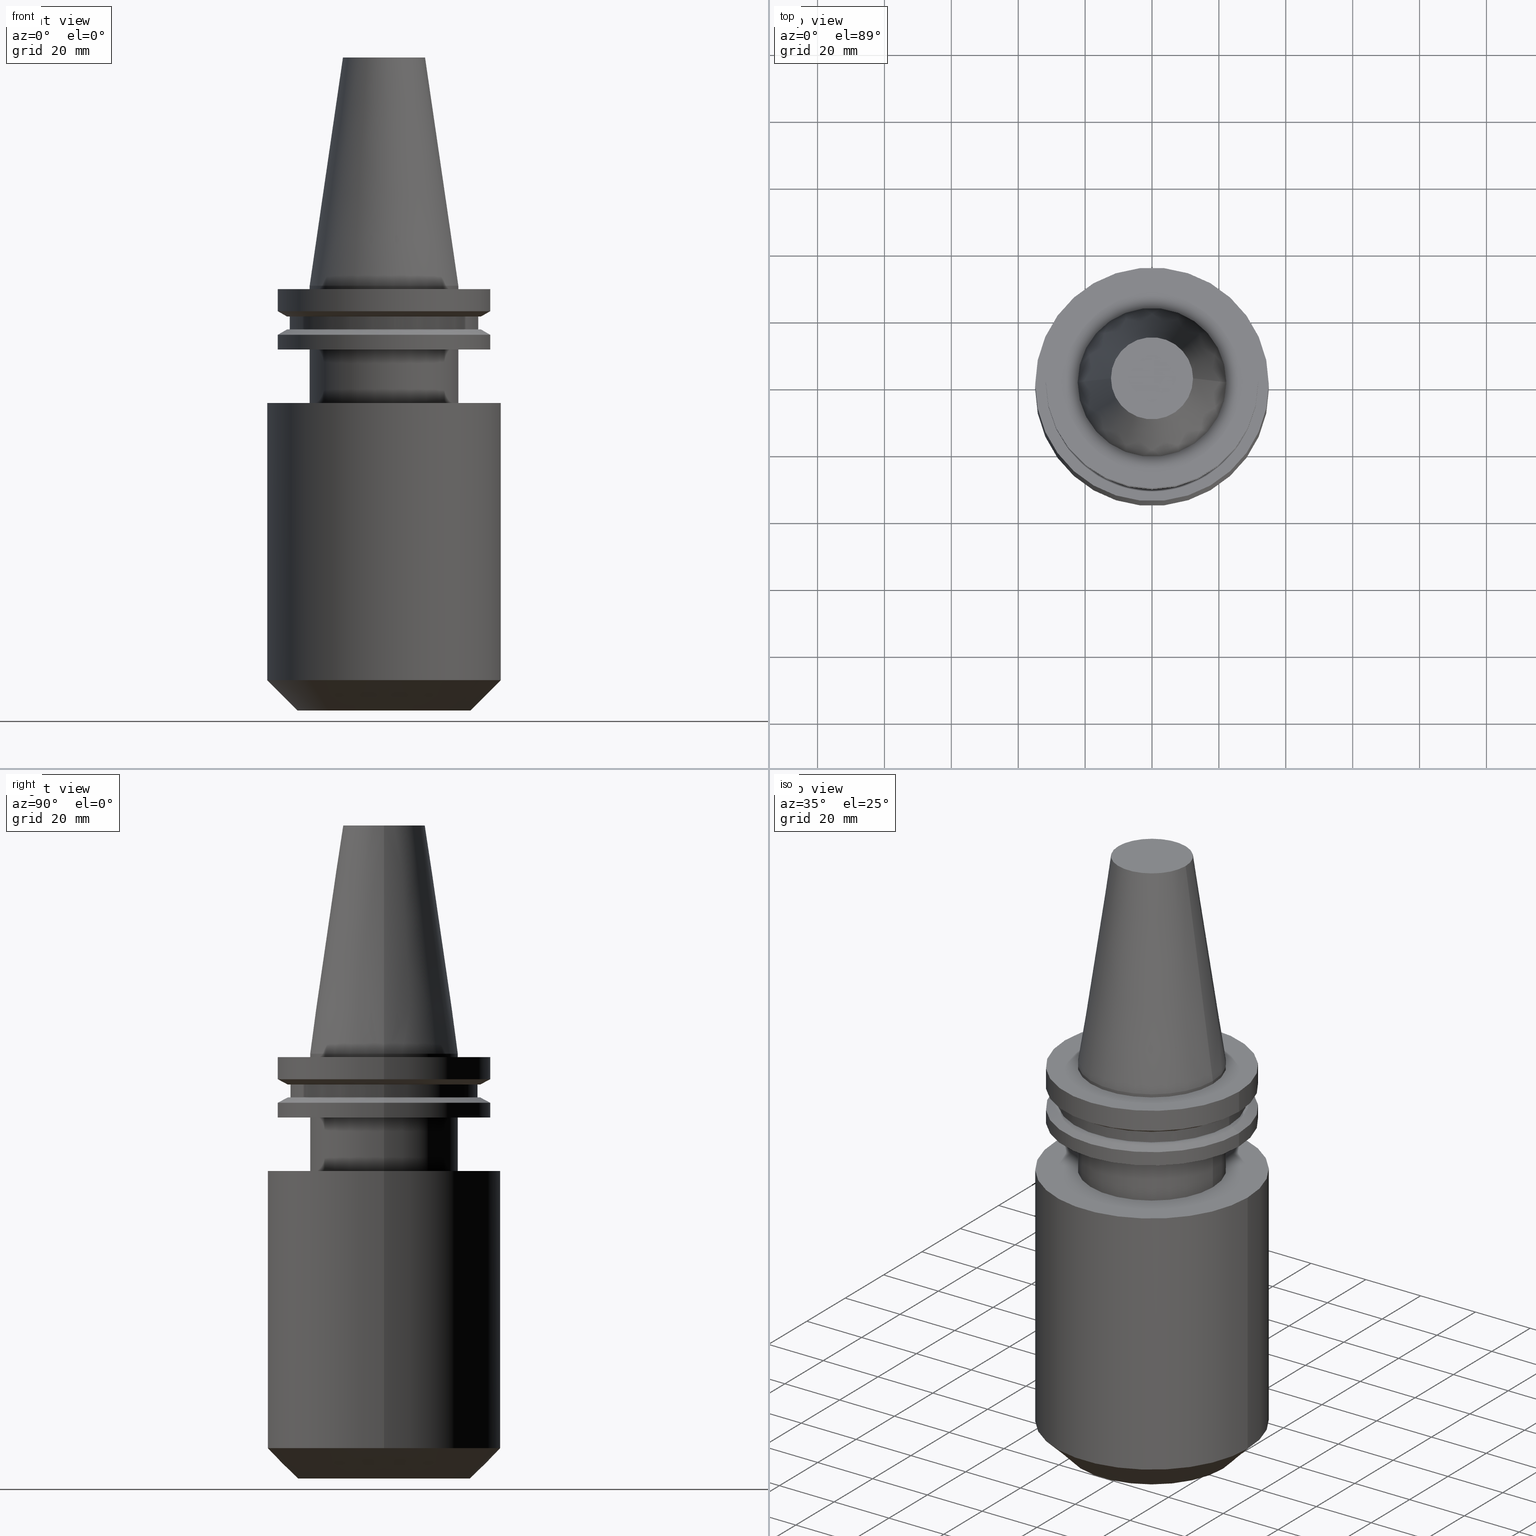
[diagram: canonical four-view strip — front | top / right | iso, engineering-drawing reading convention]
A machine part, canonical four-view strip (front | top / right | iso — engineering-drawing reading convention). The complete STEP part file that produces these views, byte-faithful:
ISO-10303-21;
HEADER;
FILE_DESCRIPTION (( 'STEP AP203' ),
    '1' );
FILE_NAME ('BCV40-EM1_500-5.stp',
    '2022-02-23T14:51:17',
    ( '' ),
    ( '' ),
    'SwSTEP 2.0',
    'SolidWorks 2021',
    '' );
FILE_SCHEMA (( 'CONFIG_CONTROL_DESIGN' ));
ENDSEC;

DATA;
#1 = EDGE_LOOP ( 'NONE', ( #387, #137, #100, #568 ) ) ;
#2 = CYLINDRICAL_SURFACE ( 'NONE', #79, 22.22500000000000142 ) ;
#3 = VERTEX_POINT ( 'NONE', #643 ) ;
#4 = AXIS2_PLACEMENT_3D ( 'NONE', #124, #389, #844 ) ;
#5 = DIRECTION ( 'NONE',  ( 1.000000000000000000, 0.000000000000000000, 0.000000000000000000 ) ) ;
#6 = CIRCLE ( 'NONE', #374, 31.75000000000000000 ) ;
#7 = DIRECTION ( 'NONE',  ( 1.000000000000000000, 0.000000000000000000, 0.000000000000000000 ) ) ;
#8 = ORIENTED_EDGE ( 'NONE', *, *, #758, .F. ) ;
#9 = CARTESIAN_POINT ( 'NONE',  ( 0.000000000000000000, 0.000000000000000000, -35.04999999999999716 ) ) ;
#10 = CARTESIAN_POINT ( 'NONE',  ( -22.22500000000000142, 2.721777511104992849E-15, -19.04999999999999716 ) ) ;
#11 = VERTEX_POINT ( 'NONE', #57 ) ;
#12 = FACE_BOUND ( 'NONE', #132, .T. ) ;
#13 = DIRECTION ( 'NONE',  ( -0.000000000000000000, -0.000000000000000000, 1.000000000000000000 ) ) ;
#14 = ORIENTED_EDGE ( 'NONE', *, *, #824, .F. ) ;
#15 = ORIENTED_EDGE ( 'NONE', *, *, #561, .F. ) ;
#16 = DIRECTION ( 'NONE',  ( 1.000000000000000000, 0.000000000000000000, 0.000000000000000000 ) ) ;
#17 = AXIS2_PLACEMENT_3D ( 'NONE', #604, #757, #289 ) ;
#18 = AXIS2_PLACEMENT_3D ( 'NONE', #815, #232, #483 ) ;
#19 = DIRECTION ( 'NONE',  ( -0.000000000000000000, -0.000000000000000000, 1.000000000000000000 ) ) ;
#20 = ORIENTED_EDGE ( 'NONE', *, *, #805, .F. ) ;
#21 = VERTEX_POINT ( 'NONE', #242 ) ;
#22 = CARTESIAN_POINT ( 'NONE',  ( 0.000000000000000000, 0.000000000000000000, 68.25000000000000000 ) ) ;
#23 = FACE_OUTER_BOUND ( 'NONE', #355, .T. ) ;
#24 = EDGE_CURVE ( 'NONE', #264, #3, #122, .T. ) ;
#25 = DIRECTION ( 'NONE',  ( -0.000000000000000000, -0.000000000000000000, 1.000000000000000000 ) ) ;
#26 = ORIENTED_EDGE ( 'NONE', *, *, #852, .F. ) ;
#27 = EDGE_LOOP ( 'NONE', ( #478, #134, #720, #278 ) ) ;
#28 = CARTESIAN_POINT ( 'NONE',  ( -31.75000000000000000, 3.888253587292846476E-15, -14.65472339340266572 ) ) ;
#29 = CARTESIAN_POINT ( 'NONE',  ( 0.000000000000000000, 0.000000000000000000, 0.000000000000000000 ) ) ;
#30 = CARTESIAN_POINT ( 'NONE',  ( 19.05000000000000071, 0.000000000000000000, 0.000000000000000000 ) ) ;
#31 = ADVANCED_FACE ( 'NONE', ( #574 ), #490, .F. ) ;
#32 = ORIENTED_EDGE ( 'NONE', *, *, #457, .T. ) ;
#33 = ORIENTED_EDGE ( 'NONE', *, *, #418, .T. ) ;
#34 = FACE_OUTER_BOUND ( 'NONE', #150, .T. ) ;
#35 = CARTESIAN_POINT ( 'NONE',  ( 34.92499999999999716, 0.000000000000000000, 0.000000000000000000 ) ) ;
#36 = AXIS2_PLACEMENT_3D ( 'NONE', #522, #549, #560 ) ;
#37 = AXIS2_PLACEMENT_3D ( 'NONE', #244, #498, #501 ) ;
#38 = APPLICATION_CONTEXT ( 'configuration controlled 3d designs of mechanical parts and assemblies' ) ;
#39 = CARTESIAN_POINT ( 'NONE',  ( 0.000000000000000000, 22.22499999999999787, -35.04999999999999716 ) ) ;
#40 = VERTEX_POINT ( 'NONE', #760 ) ;
#41 = DIRECTION ( 'NONE',  ( -0.000000000000000000, -0.000000000000000000, 1.000000000000000000 ) ) ;
#42 = DIRECTION ( 'NONE',  ( -0.000000000000000000, -0.000000000000000000, 1.000000000000000000 ) ) ;
#43 = CARTESIAN_POINT ( 'NONE',  ( -31.75000000000000000, 0.000000000000000000, -14.65472339340266572 ) ) ;
#44 = EDGE_LOOP ( 'NONE', ( #471, #427, #204, #766 ) ) ;
#45 = CYLINDRICAL_SURFACE ( 'NONE', #335, 31.75000000000000000 ) ;
#46 = CARTESIAN_POINT ( 'NONE',  ( 0.000000000000000000, 0.000000000000000000, -127.0000000000000000 ) ) ;
#47 = CALENDAR_DATE ( 2022, 23, 2 ) ;
#48 = EDGE_CURVE ( 'NONE', #200, #129, #564, .T. ) ;
#49 = CIRCLE ( 'NONE', #476, 28.17999999999999972 ) ;
#50 = VERTEX_POINT ( 'NONE', #563 ) ;
#51 = APPROVAL_DATE_TIME ( #445, #810 ) ;
#52 = CARTESIAN_POINT ( 'NONE',  ( 0.000000000000000000, 0.000000000000000000, -127.0000000000000000 ) ) ;
#53 = APPROVAL ( #502, 'UNSPECIFIED' ) ;
#54 = DIRECTION ( 'NONE',  ( -0.000000000000000000, -0.000000000000000000, 1.000000000000000000 ) ) ;
#55 =( NAMED_UNIT ( * ) PLANE_ANGLE_UNIT ( ) SI_UNIT ( $, .RADIAN. ) );
#56 = FACE_OUTER_BOUND ( 'NONE', #276, .T. ) ;
#57 = CARTESIAN_POINT ( 'NONE',  ( -34.92499999999999716, 4.277078946022130887E-15, -35.04999999999999716 ) ) ;
#58 = EDGE_CURVE ( 'NONE', #801, #558, #557, .T. ) ;
#59 = APPROVAL_DATE_TIME ( #845, #499 ) ;
#60 = DIRECTION ( 'NONE',  ( -0.000000000000000000, -0.000000000000000000, 1.000000000000000000 ) ) ;
#61 = LOCAL_TIME ( 8, 51, 17.00000000000000000, #333 ) ;
#62 = AXIS2_PLACEMENT_3D ( 'NONE', #413, #166, #426 ) ;
#63 = CARTESIAN_POINT ( 'NONE',  ( 0.000000000000000000, 0.000000000000000000, -19.04999999999999716 ) ) ;
#64 = EDGE_LOOP ( 'NONE', ( #728, #153, #168, #216 ) ) ;
#65 = CC_DESIGN_PERSON_AND_ORGANIZATION_ASSIGNMENT ( #770, #850, ( #719 ) ) ;
#66 = DIRECTION ( 'NONE',  ( -0.000000000000000000, -0.000000000000000000, 1.000000000000000000 ) ) ;
#67 = ORIENTED_EDGE ( 'NONE', *, *, #842, .T. ) ;
#68 = DIRECTION ( 'NONE',  ( 1.000000000000000000, 0.000000000000000000, 0.000000000000000000 ) ) ;
#69 = EDGE_CURVE ( 'NONE', #40, #624, #647, .T. ) ;
#70 = VERTEX_POINT ( 'NONE', #10 ) ;
#71 = CARTESIAN_POINT ( 'NONE',  ( 22.22500000000000142, 0.000000000000000000, 68.25000000000000000 ) ) ;
#72 = DIRECTION ( 'NONE',  ( 1.000000000000000000, 0.000000000000000000, 0.000000000000000000 ) ) ;
#73 = CC_DESIGN_APPROVAL ( #499, ( #719 ) ) ;
#74 = VECTOR ( 'NONE', #273, 1000.000000000000000 ) ;
#75 = AXIS2_PLACEMENT_3D ( 'NONE', #209, #463, #738 ) ;
#76 = ORIENTED_EDGE ( 'NONE', *, *, #245, .T. ) ;
#77 = VECTOR ( 'NONE', #290, 1000.000000000000000 ) ;
#78 = DIRECTION ( 'NONE',  ( 1.000000000000000000, 0.000000000000000000, 0.000000000000000000 ) ) ;
#79 = AXIS2_PLACEMENT_3D ( 'NONE', #201, #655, #5 ) ;
#80 = ORIENTED_EDGE ( 'NONE', *, *, #392, .F. ) ;
#81 = CARTESIAN_POINT ( 'NONE',  ( 22.22500000000000142, 0.000000000000000000, 68.25000000000000000 ) ) ;
#82 = VERTEX_POINT ( 'NONE', #519 ) ;
#83 = EDGE_CURVE ( 'NONE', #258, #264, #799, .T. ) ;
#84 = CARTESIAN_POINT ( 'NONE',  ( 0.000000000000000000, 0.000000000000000000, 0.000000000000000000 ) ) ;
#85 = CARTESIAN_POINT ( 'NONE',  ( 19.05000000000000071, 0.000000000000000000, -35.04999999999999716 ) ) ;
#86 = CARTESIAN_POINT ( 'NONE',  ( 0.000000000000000000, 0.000000000000000000, -9.204999999999991189 ) ) ;
#87 = ORIENTED_EDGE ( 'NONE', *, *, #359, .T. ) ;
#88 = AXIS2_PLACEMENT_3D ( 'NONE', #625, #835, #175 ) ;
#89 = ORIENTED_EDGE ( 'NONE', *, *, #69, .F. ) ;
#90 = CARTESIAN_POINT ( 'NONE',  ( 31.75000000000000000, 0.000000000000000000, -14.65472339340266572 ) ) ;
#91 = AXIS2_PLACEMENT_3D ( 'NONE', #29, #541, #93 ) ;
#92 = EDGE_CURVE ( 'NONE', #258, #589, #125, .T. ) ;
#93 = DIRECTION ( 'NONE',  ( 1.000000000000000000, 0.000000000000000000, 0.000000000000000000 ) ) ;
#94 = AXIS2_PLACEMENT_3D ( 'NONE', #452, #250, #177 ) ;
#95 = DIRECTION ( 'NONE',  ( -0.000000000000000000, -0.000000000000000000, 1.000000000000000000 ) ) ;
#96 = ORIENTED_EDGE ( 'NONE', *, *, #359, .F. ) ;
#97 = CYLINDRICAL_SURFACE ( 'NONE', #293, 34.92499999999999716 ) ;
#98 = ADVANCED_FACE ( 'NONE', ( #401 ), #660, .T. ) ;
#99 = CARTESIAN_POINT ( 'NONE',  ( 28.17999999999999972, 0.000000000000000000, -13.05499999999999794 ) ) ;
#100 = ORIENTED_EDGE ( 'NONE', *, *, #331, .T. ) ;
#101 = FACE_OUTER_BOUND ( 'NONE', #529, .T. ) ;
#102 = DIRECTION ( 'NONE',  ( 1.000000000000000000, 0.000000000000000000, 0.000000000000000000 ) ) ;
#103 = EDGE_CURVE ( 'NONE', #399, #828, #339, .T. ) ;
#104 = DIRECTION ( 'NONE',  ( -0.000000000000000000, -0.000000000000000000, 1.000000000000000000 ) ) ;
#105 = ORIENTED_EDGE ( 'NONE', *, *, #576, .F. ) ;
#106 = CARTESIAN_POINT ( 'NONE',  ( 0.000000000000000000, 0.000000000000000000, 68.25000000000000000 ) ) ;
#107 = DIRECTION ( 'NONE',  ( 1.000000000000000000, 0.000000000000000000, 0.000000000000000000 ) ) ;
#108 = LINE ( 'NONE', #550, #77 ) ;
#109 = VERTEX_POINT ( 'NONE', #85 ) ;
#110 = CARTESIAN_POINT ( 'NONE',  ( 0.000000000000000000, 0.000000000000000000, -117.9000000000000057 ) ) ;
#111 = DIRECTION ( 'NONE',  ( 1.000000000000000000, 0.000000000000000000, 0.000000000000000000 ) ) ;
#112 = ORIENTED_EDGE ( 'NONE', *, *, #58, .T. ) ;
#113 = CARTESIAN_POINT ( 'NONE',  ( -22.22500000000000142, 0.000000000000000000, 0.000000000000000000 ) ) ;
#114 = EDGE_CURVE ( 'NONE', #624, #533, #269, .T. ) ;
#115 = PERSON_AND_ORGANIZATION ( #310, #675 ) ;
#116 = PLANE ( 'NONE',  #37 ) ;
#117 = ADVANCED_FACE ( 'NONE', ( #723 ), #136, .T. ) ;
#118 = AXIS2_PLACEMENT_3D ( 'NONE', #535, #351, #213 ) ;
#119 = AXIS2_PLACEMENT_3D ( 'NONE', #692, #41, #169 ) ;
#120 = AXIS2_PLACEMENT_3D ( 'NONE', #280, #25, #489 ) ;
#121 = CIRCLE ( 'NONE', #362, 19.05000000000000071 ) ;
#122 = LINE ( 'NONE', #375, #217 ) ;
#123 = PERSON_AND_ORGANIZATION_ROLE ( 'creator' ) ;
#124 = CARTESIAN_POINT ( 'NONE',  ( 0.000000000000000000, 0.000000000000000000, -14.65472339340266572 ) ) ;
#125 = LINE ( 'NONE', #404, #274 ) ;
#126 = EDGE_CURVE ( 'NONE', #194, #539, #412, .T. ) ;
#127 = FACE_OUTER_BOUND ( 'NONE', #390, .T. ) ;
#128 = EDGE_CURVE ( 'NONE', #741, #399, #454, .T. ) ;
#129 = VERTEX_POINT ( 'NONE', #419 ) ;
#130 = FACE_OUTER_BOUND ( 'NONE', #407, .T. ) ;
#131 = AXIS2_PLACEMENT_3D ( 'NONE', #536, #811, #784 ) ;
#132 = EDGE_LOOP ( 'NONE', ( #517, #618 ) ) ;
#133 = LINE ( 'NONE', #179, #663 ) ;
#134 = ORIENTED_EDGE ( 'NONE', *, *, #570, .T. ) ;
#135 = CARTESIAN_POINT ( 'NONE',  ( -28.97919780457007732, 3.718590885307660666E-15, -9.205000000000005400 ) ) ;
#136 = CYLINDRICAL_SURFACE ( 'NONE', #513, 28.17999999999999972 ) ;
#137 = ORIENTED_EDGE ( 'NONE', *, *, #126, .F. ) ;
#138 = CARTESIAN_POINT ( 'NONE',  ( 0.000000000000000000, 0.000000000000000000, -7.605276606597335842 ) ) ;
#139 = DIRECTION ( 'NONE',  ( -0.000000000000000000, -0.000000000000000000, 1.000000000000000000 ) ) ;
#140 = AXIS2_PLACEMENT_3D ( 'NONE', #152, #621, #410 ) ;
#141 = ORIENTED_EDGE ( 'NONE', *, *, #156, .F. ) ;
#142 = AXIS2_PLACEMENT_3D ( 'NONE', #503, #717, #778 ) ;
#143 = DIRECTION ( 'NONE',  ( -0.000000000000000000, -0.000000000000000000, 1.000000000000000000 ) ) ;
#144 = EDGE_CURVE ( 'NONE', #11, #813, #384, .T. ) ;
#145 = ORIENTED_EDGE ( 'NONE', *, *, #466, .F. ) ;
#146 = PLANE ( 'NONE',  #819 ) ;
#147 = ADVANCED_FACE ( 'NONE', ( #614 ), #687, .F. ) ;
#148 = DIRECTION ( 'NONE',  ( 1.000000000000000000, 0.000000000000000000, 0.000000000000000000 ) ) ;
#149 = ORIENTED_EDGE ( 'NONE', *, *, #431, .F. ) ;
#150 = EDGE_LOOP ( 'NONE', ( #772, #733, #737, #551 ) ) ;
#151 = CARTESIAN_POINT ( 'NONE',  ( 22.22500000000000142, 0.000000000000000000, -1.000000000000000888 ) ) ;
#152 = CARTESIAN_POINT ( 'NONE',  ( 0.000000000000000000, 0.000000000000000000, -7.605276606597335842 ) ) ;
#153 = ORIENTED_EDGE ( 'NONE', *, *, #408, .T. ) ;
#154 = AXIS2_PLACEMENT_3D ( 'NONE', #22, #742, #814 ) ;
#155 = CARTESIAN_POINT ( 'NONE',  ( 0.000000000000000000, 0.000000000000000000, -19.04999999999999716 ) ) ;
#156 = EDGE_CURVE ( 'NONE', #698, #558, #171, .T. ) ;
#157 = LINE ( 'NONE', #544, #364 ) ;
#158 = VERTEX_POINT ( 'NONE', #809 ) ;
#159 = ORIENTED_EDGE ( 'NONE', *, *, #233, .T. ) ;
#160 = DIRECTION ( 'NONE',  ( -0.000000000000000000, -0.000000000000000000, 1.000000000000000000 ) ) ;
#161 = CARTESIAN_POINT ( 'NONE',  ( 0.000000000000000000, 0.000000000000000000, -35.04999999999999716 ) ) ;
#162 = CARTESIAN_POINT ( 'NONE',  ( 0.000000000000000000, 0.000000000000000000, 68.25000000000000000 ) ) ;
#163 = EDGE_LOOP ( 'NONE', ( #323, #651 ) ) ;
#164 = CARTESIAN_POINT ( 'NONE',  ( -22.22500000000000142, 2.721777511104992849E-15, -1.000000000000000888 ) ) ;
#165 = FACE_OUTER_BOUND ( 'NONE', #44, .T. ) ;
#166 = DIRECTION ( 'NONE',  ( 0.000000000000000000, 0.000000000000000000, -1.000000000000000000 ) ) ;
#167 = DIRECTION ( 'NONE',  ( -0.000000000000000000, -0.000000000000000000, 1.000000000000000000 ) ) ;
#168 = ORIENTED_EDGE ( 'NONE', *, *, #732, .T. ) ;
#169 = DIRECTION ( 'NONE',  ( 1.000000000000000000, 0.000000000000000000, 0.000000000000000000 ) ) ;
#170 = DIRECTION ( 'NONE',  ( -0.1443082272672999711, 0.000000000000000000, -0.9895327864921755756 ) ) ;
#171 = CIRCLE ( 'NONE', #190, 22.22500000000000142 ) ;
#172 = VECTOR ( 'NONE', #296, 1000.000000000000000 ) ;
#173 = EDGE_CURVE ( 'NONE', #21, #158, #764, .T. ) ;
#174 = EDGE_LOOP ( 'NONE', ( #270, #606, #26, #612 ) ) ;
#175 = DIRECTION ( 'NONE',  ( 1.000000000000000000, 0.000000000000000000, 0.000000000000000000 ) ) ;
#176 = EDGE_CURVE ( 'NONE', #691, #82, #238, .T. ) ;
#177 = DIRECTION ( 'NONE',  ( 1.000000000000000000, 0.000000000000000000, 0.000000000000000000 ) ) ;
#178 = DATE_AND_TIME ( #773, #240 ) ;
#179 = CARTESIAN_POINT ( 'NONE',  ( 28.97919780457007732, 0.000000000000000000, -9.205000000000005400 ) ) ;
#180 = ADVANCED_FACE ( 'NONE', ( #752 ), #221, .T. ) ;
#181 = CC_DESIGN_APPROVAL ( #53, ( #542 ) ) ;
#182 = AXIS2_PLACEMENT_3D ( 'NONE', #804, #730, #791 ) ;
#183 = AXIS2_PLACEMENT_3D ( 'NONE', #846, #580, #68 ) ;
#184 = CARTESIAN_POINT ( 'NONE',  ( 0.000000000000000000, 19.05000000000000071, -127.0000000000000000 ) ) ;
#185 = APPROVAL_ROLE ( '' ) ;
#186 = CARTESIAN_POINT ( 'NONE',  ( -34.92499999999999716, 4.277078946022130887E-15, -117.9000000000000057 ) ) ;
#187 =( LENGTH_UNIT ( ) NAMED_UNIT ( * ) SI_UNIT ( .MILLI., .METRE. ) );
#188 = EDGE_LOOP ( 'NONE', ( #433, #96, #76, #696 ) ) ;
#189 = DIRECTION ( 'NONE',  ( 1.000000000000000000, 0.000000000000000000, 0.000000000000000000 ) ) ;
#190 = AXIS2_PLACEMENT_3D ( 'NONE', #227, #237, #365 ) ;
#191 = CIRCLE ( 'NONE', #4, 31.75000000000000000 ) ;
#192 = ADVANCED_FACE ( 'NONE', ( #487 ), #674, .F. ) ;
#193 = LOCAL_TIME ( 8, 51, 17.00000000000000000, #565 ) ;
#194 = VERTEX_POINT ( 'NONE', #302 ) ;
#195 = LINE ( 'NONE', #81, #479 ) ;
#196 = ORIENTED_EDGE ( 'NONE', *, *, #249, .T. ) ;
#197 = CC_DESIGN_DATE_AND_TIME_ASSIGNMENT ( #178, #442, ( #542 ) ) ;
#198 = CARTESIAN_POINT ( 'NONE',  ( 31.75000000000000000, 3.888253587292846476E-15, -14.65472339340266572 ) ) ;
#199 = DIRECTION ( 'NONE',  ( -0.000000000000000000, -0.000000000000000000, 1.000000000000000000 ) ) ;
#200 = VERTEX_POINT ( 'NONE', #348 ) ;
#201 = CARTESIAN_POINT ( 'NONE',  ( 0.000000000000000000, 0.000000000000000000, 68.25000000000000000 ) ) ;
#202 = EDGE_CURVE ( 'NONE', #821, #545, #615, .T. ) ;
#203 = AXIS2_PLACEMENT_3D ( 'NONE', #725, #394, #607 ) ;
#204 = ORIENTED_EDGE ( 'NONE', *, *, #92, .T. ) ;
#205 = AXIS2_PLACEMENT_3D ( 'NONE', #184, #383, #780 ) ;
#206 = CARTESIAN_POINT ( 'NONE',  ( 0.000000000000000000, 31.75000000000000000, -0.9999999999999995559 ) ) ;
#207 = ADVANCED_FACE ( 'NONE', ( #23 ), #585, .T. ) ;
#208 = ORIENTED_EDGE ( 'NONE', *, *, #561, .T. ) ;
#209 = CARTESIAN_POINT ( 'NONE',  ( 0.000000000000000000, 0.000000000000000000, -35.04999999999999716 ) ) ;
#210 = CARTESIAN_POINT ( 'NONE',  ( 0.000000000000000000, 0.000000000000000000, 68.25000000000000000 ) ) ;
#211 = ORIENTED_EDGE ( 'NONE', *, *, #218, .T. ) ;
#212 = DIRECTION ( 'NONE',  ( 1.000000000000000000, 0.000000000000000000, 0.000000000000000000 ) ) ;
#213 = DIRECTION ( 'NONE',  ( -1.000000000000000000, 0.000000000000000000, -0.000000000000000000 ) ) ;
#214 = DIRECTION ( 'NONE',  ( -0.000000000000000000, -0.000000000000000000, 1.000000000000000000 ) ) ;
#215 = ORIENTED_EDGE ( 'NONE', *, *, #114, .T. ) ;
#216 = ORIENTED_EDGE ( 'NONE', *, *, #447, .F. ) ;
#217 = VECTOR ( 'NONE', #54, 1000.000000000000000 ) ;
#218 = EDGE_CURVE ( 'NONE', #813, #11, #361, .T. ) ;
#219 = CARTESIAN_POINT ( 'NONE',  ( 31.75000000000000000, 0.000000000000000000, 68.25000000000000000 ) ) ;
#220 = CIRCLE ( 'NONE', #131, 34.92499999999999716 ) ;
#221 = CYLINDRICAL_SURFACE ( 'NONE', #848, 34.92499999999999716 ) ;
#222 = VECTOR ( 'NONE', #673, 1000.000000000000000 ) ;
#223 = AXIS2_PLACEMENT_3D ( 'NONE', #521, #518, #279 ) ;
#224 = DIRECTION ( 'NONE',  ( -0.000000000000000000, -0.000000000000000000, 1.000000000000000000 ) ) ;
#225 = EDGE_LOOP ( 'NONE', ( #360, #685 ) ) ;
#226 = DIRECTION ( 'NONE',  ( -0.000000000000000000, -0.000000000000000000, 1.000000000000000000 ) ) ;
#227 = CARTESIAN_POINT ( 'NONE',  ( 0.000000000000000000, 0.000000000000000000, 0.000000000000000000 ) ) ;
#228 = DIRECTION ( 'NONE',  ( 1.000000000000000000, 0.000000000000000000, 0.000000000000000000 ) ) ;
#229 = DIRECTION ( 'NONE',  ( -0.000000000000000000, -0.000000000000000000, 1.000000000000000000 ) ) ;
#230 = ORIENTED_EDGE ( 'NONE', *, *, #24, .T. ) ;
#231 = CARTESIAN_POINT ( 'NONE',  ( -34.92499999999999716, 4.277078946022130887E-15, 0.000000000000000000 ) ) ;
#232 = DIRECTION ( 'NONE',  ( 0.000000000000000000, 0.000000000000000000, -1.000000000000000000 ) ) ;
#233 = EDGE_CURVE ( 'NONE', #50, #813, #357, .T. ) ;
#234 = CYLINDRICAL_SURFACE ( 'NONE', #311, 22.22500000000000142 ) ;
#235 = ORIENTED_EDGE ( 'NONE', *, *, #727, .T. ) ;
#236 = DIRECTION ( 'NONE',  ( 1.000000000000000000, 0.000000000000000000, 0.000000000000000000 ) ) ;
#237 = DIRECTION ( 'NONE',  ( -0.000000000000000000, -0.000000000000000000, 1.000000000000000000 ) ) ;
#238 = CIRCLE ( 'NONE', #676, 28.97919780457007732 ) ;
#239 = CIRCLE ( 'NONE', #514, 25.82499999999997087 ) ;
#240 = LOCAL_TIME ( 8, 51, 17.00000000000000000, #500 ) ;
#241 = ADVANCED_FACE ( 'NONE', ( #165 ), #430, .T. ) ;
#242 = CARTESIAN_POINT ( 'NONE',  ( 31.75000000000000000, 0.000000000000000000, -7.605276606597335842 ) ) ;
#243 = APPROVAL_ROLE ( '' ) ;
#244 = CARTESIAN_POINT ( 'NONE',  ( 0.000000000000000000, 28.17999999999999972, -13.05499999999999794 ) ) ;
#245 = EDGE_CURVE ( 'NONE', #538, #698, #830, .T. ) ;
#246 = PERSON_AND_ORGANIZATION_ROLE ( 'classification_officer' ) ;
#247 = DIRECTION ( 'NONE',  ( 0.000000000000000000, 0.000000000000000000, -1.000000000000000000 ) ) ;
#248 = PERSON_AND_ORGANIZATION ( #310, #675 ) ;
#249 = EDGE_CURVE ( 'NONE', #109, #530, #496, .T. ) ;
#250 = DIRECTION ( 'NONE',  ( -0.000000000000000000, -0.000000000000000000, 1.000000000000000000 ) ) ;
#251 = VECTOR ( 'NONE', #622, 1000.000000000000000 ) ;
#252 = APPLICATION_PROTOCOL_DEFINITION ( 'international standard', 'config_control_design', 1994, #38 ) ;
#253 = CARTESIAN_POINT ( 'NONE',  ( -19.05000000000000071, 2.332952152375708043E-15, -35.04999999999999716 ) ) ;
#254 = PERSON_AND_ORGANIZATION ( #310, #675 ) ;
#255 = ORIENTED_EDGE ( 'NONE', *, *, #388, .F. ) ;
#256 = FACE_BOUND ( 'NONE', #378, .T. ) ;
#257 = EDGE_CURVE ( 'NONE', #3, #589, #790, .T. ) ;
#258 = VERTEX_POINT ( 'NONE', #99 ) ;
#259 = DIRECTION ( 'NONE',  ( -0.000000000000000000, -0.000000000000000000, 1.000000000000000000 ) ) ;
#260 = CIRCLE ( 'NONE', #849, 19.05000000000000071 ) ;
#261 = ADVANCED_FACE ( 'NONE', ( #477 ), #398, .T. ) ;
#262 = VECTOR ( 'NONE', #710, 1000.000000000000000 ) ;
#263 = CALENDAR_DATE ( 2022, 23, 2 ) ;
#264 = VERTEX_POINT ( 'NONE', #610 ) ;
#265 = LINE ( 'NONE', #198, #222 ) ;
#266 = CARTESIAN_POINT ( 'NONE',  ( 0.000000000000000000, 0.000000000000000000, -9.205000000000005400 ) ) ;
#267 = ORIENTED_EDGE ( 'NONE', *, *, #457, .F. ) ;
#268 = CARTESIAN_POINT ( 'NONE',  ( -25.82499999999997087, 3.719864652410083281E-15, -127.0000000000000000 ) ) ;
#269 = LINE ( 'NONE', #342, #788 ) ;
#270 = ORIENTED_EDGE ( 'NONE', *, *, #664, .F. ) ;
#271 = DIRECTION ( 'NONE',  ( 0.000000000000000000, 0.000000000000000000, -1.000000000000000000 ) ) ;
#272 = ADVANCED_FACE ( 'NONE', ( #806 ), #689, .F. ) ;
#273 = DIRECTION ( 'NONE',  ( -0.000000000000000000, -0.000000000000000000, 1.000000000000000000 ) ) ;
#274 = VECTOR ( 'NONE', #800, 1000.000000000000000 ) ;
#275 = AXIS2_PLACEMENT_3D ( 'NONE', #84, #271, #341 ) ;
#276 = EDGE_LOOP ( 'NONE', ( #20, #291 ) ) ;
#277 = AXIS2_PLACEMENT_3D ( 'NONE', #161, #424, #102 ) ;
#278 = ORIENTED_EDGE ( 'NONE', *, *, #449, .F. ) ;
#279 = DIRECTION ( 'NONE',  ( 1.000000000000000000, 0.000000000000000000, 0.000000000000000000 ) ) ;
#280 = CARTESIAN_POINT ( 'NONE',  ( 0.000000000000000000, 0.000000000000000000, -19.04999999999999716 ) ) ;
#281 = EDGE_LOOP ( 'NONE', ( #834, #80, #716, #196 ) ) ;
#282 = EDGE_LOOP ( 'NONE', ( #8, #328, #159, #304 ) ) ;
#283 = CARTESIAN_POINT ( 'NONE',  ( 0.000000000000000000, 0.000000000000000000, -9.205000000000005400 ) ) ;
#284 = DIRECTION ( 'NONE',  ( 1.000000000000000000, 0.000000000000000000, 0.000000000000000000 ) ) ;
#285 = UNCERTAINTY_MEASURE_WITH_UNIT (LENGTH_MEASURE( 1.000000000000000082E-05 ), #187, 'distance_accuracy_value', 'NONE');
#286 = EDGE_LOOP ( 'NONE', ( #402, #646 ) ) ;
#287 = VERTEX_POINT ( 'NONE', #470 ) ;
#288 = LINE ( 'NONE', #219, #744 ) ;
#289 = DIRECTION ( 'NONE',  ( 1.000000000000000000, 0.000000000000000000, 0.000000000000000000 ) ) ;
#290 = DIRECTION ( 'NONE',  ( -0.000000000000000000, -0.000000000000000000, 1.000000000000000000 ) ) ;
#291 = ORIENTED_EDGE ( 'NONE', *, *, #176, .F. ) ;
#292 = ORIENTED_EDGE ( 'NONE', *, *, #257, .T. ) ;
#293 = AXIS2_PLACEMENT_3D ( 'NONE', #492, #756, #767 ) ;
#294 = DIRECTION ( 'NONE',  ( -0.000000000000000000, -0.000000000000000000, 1.000000000000000000 ) ) ;
#295 = VECTOR ( 'NONE', #170, 999.9999999999998863 ) ;
#296 = DIRECTION ( 'NONE',  ( -0.000000000000000000, -0.000000000000000000, 1.000000000000000000 ) ) ;
#297 = DIRECTION ( 'NONE',  ( 1.000000000000000000, 0.000000000000000000, 0.000000000000000000 ) ) ;
#298 = EDGE_LOOP ( 'NONE', ( #87, #325 ) ) ;
#299 = EDGE_LOOP ( 'NONE', ( #145, #807, #491, #422 ) ) ;
#300 = DIRECTION ( 'NONE',  ( 0.000000000000000000, 0.000000000000000000, -1.000000000000000000 ) ) ;
#301 = EDGE_CURVE ( 'NONE', #40, #50, #157, .T. ) ;
#302 = CARTESIAN_POINT ( 'NONE',  ( -28.97919780457008088, 0.000000000000000000, -13.05499999999999794 ) ) ;
#303 = DIRECTION ( 'NONE',  ( -0.000000000000000000, -0.000000000000000000, 1.000000000000000000 ) ) ;
#304 = ORIENTED_EDGE ( 'NONE', *, *, #144, .F. ) ;
#305 = FACE_OUTER_BOUND ( 'NONE', #282, .T. ) ;
#306 = EDGE_CURVE ( 'NONE', #539, #194, #731, .T. ) ;
#307 = PERSON_AND_ORGANIZATION ( #310, #675 ) ;
#308 = APPROVAL_PERSON_ORGANIZATION ( #254, #810, #185 ) ;
#309 = CIRCLE ( 'NONE', #203, 28.17999999999999972 ) ;
#310 = PERSON ( 'UNSPECIFIED', 'UNSPECIFIED', 'UNSPECIFIED', ('UNSPECIFIED'), ('UNSPECIFIED'), ('UNSPECIFIED') ) ;
#311 = AXIS2_PLACEMENT_3D ( 'NONE', #210, #736, #670 ) ;
#312 = MECHANICAL_CONTEXT ( 'NONE', #555, 'mechanical' ) ;
#313 = CARTESIAN_POINT ( 'NONE',  ( 0.000000000000000000, 0.000000000000000000, -127.0000000000000000 ) ) ;
#314 = PERSON_AND_ORGANIZATION_ROLE ( 'design_owner' ) ;
#315 = CARTESIAN_POINT ( 'NONE',  ( 19.05000000000000071, 0.000000000000000000, -127.0000000000000000 ) ) ;
#316 = PRODUCT_DEFINITION_SHAPE ( 'NONE', 'NONE',  #488 ) ;
#317 = DIRECTION ( 'NONE',  ( -0.000000000000000000, -0.000000000000000000, 1.000000000000000000 ) ) ;
#318 = ORIENTED_EDGE ( 'NONE', *, *, #629, .T. ) ;
#319 = APPROVAL_STATUS ( 'not_yet_approved' ) ;
#320 = LINE ( 'NONE', #582, #262 ) ;
#321 = CC_DESIGN_APPROVAL ( #810, ( #488 ) ) ;
#322 = AXIS2_PLACEMENT_3D ( 'NONE', #693, #42, #554 ) ;
#323 = ORIENTED_EDGE ( 'NONE', *, *, #249, .F. ) ;
#324 = FACE_BOUND ( 'NONE', #787, .T. ) ;
#325 = ORIENTED_EDGE ( 'NONE', *, *, #397, .T. ) ;
#326 = DIRECTION ( 'NONE',  ( -1.000000000000000000, 0.000000000000000000, 0.000000000000000000 ) ) ;
#327 = ADVANCED_FACE ( 'NONE', ( #832 ), #234, .T. ) ;
#328 = ORIENTED_EDGE ( 'NONE', *, *, #781, .T. ) ;
#329 = CYLINDRICAL_SURFACE ( 'NONE', #746, 22.22500000000000142 ) ;
#330 = CIRCLE ( 'NONE', #120, 31.74999999999999289 ) ;
#331 = EDGE_CURVE ( 'NONE', #194, #828, #358, .T. ) ;
#332 = VECTOR ( 'NONE', #803, 1000.000000000000000 ) ;
#333 = COORDINATED_UNIVERSAL_TIME_OFFSET ( 6, 0, .BEHIND. ) ;
#334 = EDGE_LOOP ( 'NONE', ( #796, #67, #208, #141 ) ) ;
#335 = AXIS2_PLACEMENT_3D ( 'NONE', #106, #559, #680 ) ;
#336 = DIRECTION ( 'NONE',  ( 0.000000000000000000, -0.000000000000000000, 1.000000000000000000 ) ) ;
#337 = EDGE_LOOP ( 'NONE', ( #89, #267 ) ) ;
#338 = DIRECTION ( 'NONE',  ( 0.000000000000000000, 0.000000000000000000, -1.000000000000000000 ) ) ;
#339 = LINE ( 'NONE', #573, #74 ) ;
#340 = EDGE_LOOP ( 'NONE', ( #619, #467, #406, #105 ) ) ;
#341 = DIRECTION ( 'NONE',  ( -1.000000000000000000, 0.000000000000000000, 0.000000000000000000 ) ) ;
#342 = CARTESIAN_POINT ( 'NONE',  ( -25.82499999999997087, 3.162650358798036069E-15, -127.0000000000000000 ) ) ;
#343 = DIRECTION ( 'NONE',  ( 1.000000000000000000, 0.000000000000000000, 0.000000000000000000 ) ) ;
#344 = EDGE_LOOP ( 'NONE', ( #437, #421, #459, #149 ) ) ;
#345 = CONICAL_SURFACE ( 'NONE', #635, 25.82499999999997087, 0.7853981633974500554 ) ;
#346 = ORIENTED_EDGE ( 'NONE', *, *, #306, .F. ) ;
#347 = DIRECTION ( 'NONE',  ( -1.000000000000000000, 0.000000000000000000, -0.000000000000000000 ) ) ;
#348 = CARTESIAN_POINT ( 'NONE',  ( -31.75000000000000000, 3.888253587292846476E-15, -1.000000000000000888 ) ) ;
#349 = EDGE_CURVE ( 'NONE', #287, #70, #108, .T. ) ;
#350 = DIRECTION ( 'NONE',  ( 1.000000000000000000, 0.000000000000000000, 0.000000000000000000 ) ) ;
#351 = DIRECTION ( 'NONE',  ( 0.000000000000000000, 0.000000000000000000, -1.000000000000000000 ) ) ;
#352 = CC_DESIGN_PERSON_AND_ORGANIZATION_ASSIGNMENT ( #575, #123, ( #719 ) ) ;
#353 = LINE ( 'NONE', #30, #616 ) ;
#354 = EDGE_LOOP ( 'NONE', ( #668, #235, #255, #15 ) ) ;
#355 = EDGE_LOOP ( 'NONE', ( #346, #706, #456, #583 ) ) ;
#356 = FACE_BOUND ( 'NONE', #679, .T. ) ;
#357 = LINE ( 'NONE', #35, #172 ) ;
#358 = LINE ( 'NONE', #43, #251 ) ;
#359 = EDGE_CURVE ( 'NONE', #538, #801, #436, .T. ) ;
#360 = ORIENTED_EDGE ( 'NONE', *, *, #392, .T. ) ;
#361 = CIRCLE ( 'NONE', #277, 34.92499999999999716 ) ;
#362 = AXIS2_PLACEMENT_3D ( 'NONE', #9, #259, #400 ) ;
#363 = CARTESIAN_POINT ( 'NONE',  ( 0.000000000000000000, 19.05000000000000071, -35.04999999999999716 ) ) ;
#364 = VECTOR ( 'NONE', #678, 1000.000000000000000 ) ;
#365 = DIRECTION ( 'NONE',  ( 1.000000000000000000, 0.000000000000000000, 0.000000000000000000 ) ) ;
#366 = CARTESIAN_POINT ( 'NONE',  ( 0.000000000000000000, 0.000000000000000000, -35.04999999999999716 ) ) ;
#367 = ORIENTED_EDGE ( 'NONE', *, *, #301, .F. ) ;
#368 = EDGE_CURVE ( 'NONE', #545, #109, #353, .T. ) ;
#369 = PLANE ( 'NONE',  #88 ) ;
#370 = DIRECTION ( 'NONE',  ( 1.000000000000000000, 0.000000000000000000, 0.000000000000000000 ) ) ;
#371 = COORDINATED_UNIVERSAL_TIME_OFFSET ( 6, 0, .BEHIND. ) ;
#372 = CARTESIAN_POINT ( 'NONE',  ( 28.97919780457008088, 3.718590885307660666E-15, -13.05499999999999794 ) ) ;
#373 = CONICAL_SURFACE ( 'NONE', #566, 22.22500000000000142, 0.1448138465474119174 ) ;
#374 = AXIS2_PLACEMENT_3D ( 'NONE', #138, #512, #403 ) ;
#375 = CARTESIAN_POINT ( 'NONE',  ( -28.17999999999999972, 3.451054679997241634E-15, 68.25000000000000000 ) ) ;
#376 =( NAMED_UNIT ( * ) SI_UNIT ( $, .STERADIAN. ) SOLID_ANGLE_UNIT ( ) );
#377 = CYLINDRICAL_SURFACE ( 'NONE', #578, 31.75000000000000000 ) ;
#378 = EDGE_LOOP ( 'NONE', ( #382, #292 ) ) ;
#379 = DIRECTION ( 'NONE',  ( 1.000000000000000000, 0.000000000000000000, 0.000000000000000000 ) ) ;
#380 = EDGE_CURVE ( 'NONE', #589, #3, #49, .T. ) ;
#381 = DIRECTION ( 'NONE',  ( 1.000000000000000000, 0.000000000000000000, 0.000000000000000000 ) ) ;
#382 = ORIENTED_EDGE ( 'NONE', *, *, #380, .T. ) ;
#383 = DIRECTION ( 'NONE',  ( 0.000000000000000000, -0.000000000000000000, 1.000000000000000000 ) ) ;
#384 = CIRCLE ( 'NONE', #631, 34.92499999999999716 ) ;
#385 = AXIS2_PLACEMENT_3D ( 'NONE', #712, #702, #641 ) ;
#386 = AXIS2_PLACEMENT_3D ( 'NONE', #283, #534, #212 ) ;
#387 = ORIENTED_EDGE ( 'NONE', *, *, #609, .F. ) ;
#388 = EDGE_CURVE ( 'NONE', #558, #698, #839, .T. ) ;
#389 = DIRECTION ( 'NONE',  ( -0.000000000000000000, -0.000000000000000000, 1.000000000000000000 ) ) ;
#390 = EDGE_LOOP ( 'NONE', ( #636, #32, #812, #802 ) ) ;
#391 = DIRECTION ( 'NONE',  ( 0.000000000000000000, 0.000000000000000000, -1.000000000000000000 ) ) ;
#392 = EDGE_CURVE ( 'NONE', #545, #821, #260, .T. ) ;
#393 = ORIENTED_EDGE ( 'NONE', *, *, #202, .F. ) ;
#394 = DIRECTION ( 'NONE',  ( -0.000000000000000000, -0.000000000000000000, 1.000000000000000000 ) ) ;
#395 = LOCAL_TIME ( 8, 51, 17.00000000000000000, #571 ) ;
#396 = AXIS2_PLACEMENT_3D ( 'NONE', #266, #317, #735 ) ;
#397 = EDGE_CURVE ( 'NONE', #801, #538, #707, .T. ) ;
#398 = CONICAL_SURFACE ( 'NONE', #62, 31.75000000000000000, 1.047197551196597853 ) ;
#399 = VERTEX_POINT ( 'NONE', #605 ) ;
#400 = DIRECTION ( 'NONE',  ( 1.000000000000000000, 0.000000000000000000, 0.000000000000000000 ) ) ;
#401 = FACE_OUTER_BOUND ( 'NONE', #27, .T. ) ;
#402 = ORIENTED_EDGE ( 'NONE', *, *, #128, .F. ) ;
#403 = DIRECTION ( 'NONE',  ( 1.000000000000000000, 0.000000000000000000, 0.000000000000000000 ) ) ;
#404 = CARTESIAN_POINT ( 'NONE',  ( 28.17999999999999972, 0.000000000000000000, 68.25000000000000000 ) ) ;
#405 = CARTESIAN_POINT ( 'NONE',  ( 0.000000000000000000, 0.000000000000000000, -13.05499999999999794 ) ) ;
#406 = ORIENTED_EDGE ( 'NONE', *, *, #449, .T. ) ;
#407 = EDGE_LOOP ( 'NONE', ( #749, #724 ) ) ;
#408 = EDGE_CURVE ( 'NONE', #399, #741, #330, .T. ) ;
#409 = CARTESIAN_POINT ( 'NONE',  ( -28.97919780457007732, 3.548928183322474856E-15, -9.205000000000005400 ) ) ;
#410 = DIRECTION ( 'NONE',  ( 1.000000000000000000, 0.000000000000000000, 0.000000000000000000 ) ) ;
#411 = APPROVAL_PERSON_ORGANIZATION ( #248, #53, #777 ) ;
#412 = CIRCLE ( 'NONE', #474, 28.97919780457008088 ) ;
#413 = CARTESIAN_POINT ( 'NONE',  ( 0.000000000000000000, 0.000000000000000000, -14.65472339340266572 ) ) ;
#414 = ORIENTED_EDGE ( 'NONE', *, *, #92, .F. ) ;
#415 = AXIS2_PLACEMENT_3D ( 'NONE', #747, #104, #683 ) ;
#416 = ORIENTED_EDGE ( 'NONE', *, *, #664, .T. ) ;
#417 = DIRECTION ( 'NONE',  ( -0.000000000000000000, -0.000000000000000000, 1.000000000000000000 ) ) ;
#418 = EDGE_CURVE ( 'NONE', #50, #533, #220, .T. ) ;
#419 = CARTESIAN_POINT ( 'NONE',  ( 31.75000000000000000, 0.000000000000000000, -1.000000000000000888 ) ) ;
#420 = DIRECTION ( 'NONE',  ( -0.000000000000000000, -0.000000000000000000, 1.000000000000000000 ) ) ;
#421 = ORIENTED_EDGE ( 'NONE', *, *, #466, .T. ) ;
#422 = ORIENTED_EDGE ( 'NONE', *, *, #48, .F. ) ;
#423 = CYLINDRICAL_SURFACE ( 'NONE', #154, 22.22500000000000142 ) ;
#424 = DIRECTION ( 'NONE',  ( -0.000000000000000000, -0.000000000000000000, 1.000000000000000000 ) ) ;
#425 = ADVANCED_FACE ( 'NONE', ( #127 ), #345, .T. ) ;
#426 = DIRECTION ( 'NONE',  ( -1.000000000000000000, 0.000000000000000000, 0.000000000000000000 ) ) ;
#427 = ORIENTED_EDGE ( 'NONE', *, *, #695, .T. ) ;
#428 = VERTEX_POINT ( 'NONE', #572 ) ;
#429 = CYLINDRICAL_SURFACE ( 'NONE', #648, 31.75000000000000000 ) ;
#430 = CYLINDRICAL_SURFACE ( 'NONE', #322, 28.17999999999999972 ) ;
#431 = EDGE_CURVE ( 'NONE', #21, #129, #637, .T. ) ;
#432 = CARTESIAN_POINT ( 'NONE',  ( 0.000000000000000000, 0.000000000000000000, 0.000000000000000000 ) ) ;
#433 = ORIENTED_EDGE ( 'NONE', *, *, #58, .F. ) ;
#434 = AXIS2_PLACEMENT_3D ( 'NONE', #363, #300, #829 ) ;
#435 = DIRECTION ( 'NONE',  ( 1.000000000000000000, 0.000000000000000000, 0.000000000000000000 ) ) ;
#436 = CIRCLE ( 'NONE', #415, 12.27178102086201150 ) ;
#437 = ORIENTED_EDGE ( 'NONE', *, *, #173, .T. ) ;
#438 = LINE ( 'NONE', #231, #543 ) ;
#439 = PRODUCT ( 'BCV40-EM1_500-5', 'BCV40-EM1_500-5', '', ( #312 ) ) ;
#440 = SECURITY_CLASSIFICATION_LEVEL ( 'unclassified' ) ;
#441 = DIRECTION ( 'NONE',  ( -0.000000000000000000, -0.000000000000000000, 1.000000000000000000 ) ) ;
#442 = DATE_TIME_ROLE ( 'classification_date' ) ;
#443 = CARTESIAN_POINT ( 'NONE',  ( 31.75000000000000000, 0.000000000000000000, 68.25000000000000000 ) ) ;
#444 = AXIS2_PLACEMENT_3D ( 'NONE', #753, #224, #343 ) ;
#445 = DATE_AND_TIME ( #47, #785 ) ;
#446 = CARTESIAN_POINT ( 'NONE',  ( 0.000000000000000000, 0.000000000000000000, 68.25000000000000000 ) ) ;
#447 = EDGE_CURVE ( 'NONE', #828, #611, #818, .T. ) ;
#448 = PLANE ( 'NONE',  #205 ) ;
#449 = EDGE_CURVE ( 'NONE', #82, #21, #133, .T. ) ;
#450 = PERSON_AND_ORGANIZATION_ROLE ( 'creator' ) ;
#451 = EDGE_LOOP ( 'NONE', ( #509, #215, #602, #367 ) ) ;
#452 = CARTESIAN_POINT ( 'NONE',  ( 0.000000000000000000, 0.000000000000000000, -9.205000000000005400 ) ) ;
#453 = AXIS2_PLACEMENT_3D ( 'NONE', #779, #508, #370 ) ;
#454 = CIRCLE ( 'NONE', #36, 31.74999999999999289 ) ;
#455 = AXIS2_PLACEMENT_3D ( 'NONE', #162, #19, #228 ) ;
#456 = ORIENTED_EDGE ( 'NONE', *, *, #497, .T. ) ;
#457 = EDGE_CURVE ( 'NONE', #624, #40, #239, .T. ) ;
#458 = FACE_OUTER_BOUND ( 'NONE', #299, .T. ) ;
#459 = ORIENTED_EDGE ( 'NONE', *, *, #751, .F. ) ;
#460 = CARTESIAN_POINT ( 'NONE',  ( -19.05000000000000071, 2.332952152375708043E-15, 0.000000000000000000 ) ) ;
#461 = CC_DESIGN_PERSON_AND_ORGANIZATION_ASSIGNMENT ( #843, #246, ( #542 ) ) ;
#462 = ORIENTED_EDGE ( 'NONE', *, *, #388, .T. ) ;
#463 = DIRECTION ( 'NONE',  ( 0.000000000000000000, 0.000000000000000000, -1.000000000000000000 ) ) ;
#464 = AXIS2_PLACEMENT_3D ( 'NONE', #46, #13, #7 ) ;
#465 = LINE ( 'NONE', #409, #587 ) ;
#466 = EDGE_CURVE ( 'NONE', #158, #200, #320, .T. ) ;
#467 = ORIENTED_EDGE ( 'NONE', *, *, #176, .T. ) ;
#468 = CARTESIAN_POINT ( 'NONE',  ( 22.22500000000000142, 0.000000000000000000, -35.04999999999999716 ) ) ;
#469 = ADVANCED_FACE ( 'NONE', ( #771 ), #633, .T. ) ;
#470 = CARTESIAN_POINT ( 'NONE',  ( -22.22500000000000142, 2.721777511104992849E-15, -35.04999999999999716 ) ) ;
#471 = ORIENTED_EDGE ( 'NONE', *, *, #24, .F. ) ;
#472 = CARTESIAN_POINT ( 'NONE',  ( 34.92499999999999716, 0.000000000000000000, -35.04999999999999716 ) ) ;
#473 = CARTESIAN_POINT ( 'NONE',  ( 0.000000000000000000, 0.000000000000000000, -9.205000000000005400 ) ) ;
#474 = AXIS2_PLACEMENT_3D ( 'NONE', #726, #139, #662 ) ;
#475 = CIRCLE ( 'NONE', #119, 31.75000000000000000 ) ;
#476 = AXIS2_PLACEMENT_3D ( 'NONE', #86, #95, #820 ) ;
#477 = FACE_OUTER_BOUND ( 'NONE', #1, .T. ) ;
#478 = ORIENTED_EDGE ( 'NONE', *, *, #805, .T. ) ;
#479 = VECTOR ( 'NONE', #584, 1000.000000000000000 ) ;
#480 = CARTESIAN_POINT ( 'NONE',  ( -19.05000000000000071, 2.332952152375708043E-15, -127.0000000000000000 ) ) ;
#481 = CONICAL_SURFACE ( 'NONE', #275, 22.22500000000000142, 0.1448138465474119174 ) ;
#482 = ADVANCED_FACE ( 'NONE', ( #851 ), #373, .T. ) ;
#483 = DIRECTION ( 'NONE',  ( -1.000000000000000000, 0.000000000000000000, 0.000000000000000000 ) ) ;
#484 = CARTESIAN_POINT ( 'NONE',  ( 0.000000000000000000, 0.000000000000000000, -127.0000000000000000 ) ) ;
#485 = ORIENTED_EDGE ( 'NONE', *, *, #639, .T. ) ;
#486 = CARTESIAN_POINT ( 'NONE',  ( -22.22500000000000142, 2.721777511104992849E-15, 68.25000000000000000 ) ) ;
#487 = FACE_OUTER_BOUND ( 'NONE', #281, .T. ) ;
#488 = PRODUCT_DEFINITION ( 'UNKNOWN', '', #719, #838 ) ;
#489 = DIRECTION ( 'NONE',  ( 1.000000000000000000, 0.000000000000000000, 0.000000000000000000 ) ) ;
#490 = CYLINDRICAL_SURFACE ( 'NONE', #526, 19.05000000000000071 ) ;
#491 = ORIENTED_EDGE ( 'NONE', *, *, #431, .T. ) ;
#492 = CARTESIAN_POINT ( 'NONE',  ( 0.000000000000000000, 0.000000000000000000, 0.000000000000000000 ) ) ;
#493 = CARTESIAN_POINT ( 'NONE',  ( -22.22500000000000142, 0.000000000000000000, 0.000000000000000000 ) ) ;
#494 = ORIENTED_EDGE ( 'NONE', *, *, #695, .F. ) ;
#495 = FACE_BOUND ( 'NONE', #755, .T. ) ;
#496 = CIRCLE ( 'NONE', #599, 19.05000000000000071 ) ;
#497 = EDGE_CURVE ( 'NONE', #611, #828, #191, .T. ) ;
#498 = DIRECTION ( 'NONE',  ( 0.000000000000000000, 0.000000000000000000, -1.000000000000000000 ) ) ;
#499 = APPROVAL ( #567, 'UNSPECIFIED' ) ;
#500 = COORDINATED_UNIVERSAL_TIME_OFFSET ( 6, 0, .BEHIND. ) ;
#501 = DIRECTION ( 'NONE',  ( -1.000000000000000000, 0.000000000000000000, -0.000000000000000000 ) ) ;
#502 = APPROVAL_STATUS ( 'not_yet_approved' ) ;
#503 = CARTESIAN_POINT ( 'NONE',  ( 0.000000000000000000, 0.000000000000000000, -1.000000000000000888 ) ) ;
#504 = AXIS2_PLACEMENT_3D ( 'NONE', #694, #214, #759 ) ;
#505 = ADVANCED_FACE ( 'NONE', ( #324, #130 ), #116, .F. ) ;
#506 = FACE_OUTER_BOUND ( 'NONE', #337, .T. ) ;
#507 = EDGE_CURVE ( 'NONE', #671, #783, #586, .T. ) ;
#508 = DIRECTION ( 'NONE',  ( 0.000000000000000000, 0.000000000000000000, 1.000000000000000000 ) ) ;
#509 = ORIENTED_EDGE ( 'NONE', *, *, #69, .T. ) ;
#510 = PLANE ( 'NONE',  #528 ) ;
#511 = EDGE_LOOP ( 'NONE', ( #393, #827, #318, #853 ) ) ;
#512 = DIRECTION ( 'NONE',  ( -0.000000000000000000, -0.000000000000000000, 1.000000000000000000 ) ) ;
#513 = AXIS2_PLACEMENT_3D ( 'NONE', #656, #199, #72 ) ;
#514 = AXIS2_PLACEMENT_3D ( 'NONE', #313, #60, #189 ) ;
#515 = PRODUCT_RELATED_PRODUCT_CATEGORY ( 'detail', '', ( #439 ) ) ;
#516 = SHAPE_DEFINITION_REPRESENTATION ( #316, #688 ) ;
#517 = ORIENTED_EDGE ( 'NONE', *, *, #507, .F. ) ;
#518 = DIRECTION ( 'NONE',  ( -0.000000000000000000, -0.000000000000000000, 1.000000000000000000 ) ) ;
#519 = CARTESIAN_POINT ( 'NONE',  ( 28.97919780457007732, 0.000000000000000000, -9.205000000000005400 ) ) ;
#520 = ORIENTED_EDGE ( 'NONE', *, *, #233, .F. ) ;
#521 = CARTESIAN_POINT ( 'NONE',  ( 0.000000000000000000, 0.000000000000000000, 68.25000000000000000 ) ) ;
#522 = CARTESIAN_POINT ( 'NONE',  ( 0.000000000000000000, 0.000000000000000000, -19.04999999999999716 ) ) ;
#523 = ORIENTED_EDGE ( 'NONE', *, *, #218, .F. ) ;
#524 = FACE_OUTER_BOUND ( 'NONE', #740, .T. ) ;
#525 = ADVANCED_FACE ( 'NONE', ( #645 ), #377, .T. ) ;
#526 = AXIS2_PLACEMENT_3D ( 'NONE', #432, #229, #628 ) ;
#527 = AXIS2_PLACEMENT_3D ( 'NONE', #666, #338, #595 ) ;
#528 = AXIS2_PLACEMENT_3D ( 'NONE', #531, #336, #16 ) ;
#529 = EDGE_LOOP ( 'NONE', ( #211, #552 ) ) ;
#530 = VERTEX_POINT ( 'NONE', #253 ) ;
#531 = CARTESIAN_POINT ( 'NONE',  ( 0.000000000000000000, 28.97919780457007732, -9.204999999999996518 ) ) ;
#532 = ADVANCED_FACE ( 'NONE', ( #506, #774 ), #448, .F. ) ;
#533 = VERTEX_POINT ( 'NONE', #186 ) ;
#534 = DIRECTION ( 'NONE',  ( -0.000000000000000000, -0.000000000000000000, 1.000000000000000000 ) ) ;
#535 = CARTESIAN_POINT ( 'NONE',  ( 0.000000000000000000, 12.27178102086201150, 68.25000000000000000 ) ) ;
#536 = CARTESIAN_POINT ( 'NONE',  ( 0.000000000000000000, 0.000000000000000000, -117.9000000000000057 ) ) ;
#537 = ADVANCED_FACE ( 'NONE', ( #652 ), #650, .T. ) ;
#538 = VERTEX_POINT ( 'NONE', #854 ) ;
#539 = VERTEX_POINT ( 'NONE', #372 ) ;
#540 = DIRECTION ( 'NONE',  ( -0.000000000000000000, -0.000000000000000000, 1.000000000000000000 ) ) ;
#541 = DIRECTION ( 'NONE',  ( -0.000000000000000000, -0.000000000000000000, 1.000000000000000000 ) ) ;
#542 = SECURITY_CLASSIFICATION ( '', '', #440 ) ;
#543 = VECTOR ( 'NONE', #226, 1000.000000000000000 ) ;
#544 = CARTESIAN_POINT ( 'NONE',  ( 25.82499999999997087, 0.000000000000000000, -127.0000000000000000 ) ) ;
#545 = VERTEX_POINT ( 'NONE', #315 ) ;
#546 = ORIENTED_EDGE ( 'NONE', *, *, #349, .F. ) ;
#547 = ADVANCED_FACE ( 'NONE', ( #56, #256 ), #510, .F. ) ;
#548 = CARTESIAN_POINT ( 'NONE',  ( 31.74999999999999289, 0.000000000000000000, -19.04999999999999716 ) ) ;
#549 = DIRECTION ( 'NONE',  ( -0.000000000000000000, -0.000000000000000000, 1.000000000000000000 ) ) ;
#550 = CARTESIAN_POINT ( 'NONE',  ( -22.22500000000000142, 2.721777511104992849E-15, 68.25000000000000000 ) ) ;
#551 = ORIENTED_EDGE ( 'NONE', *, *, #732, .F. ) ;
#552 = ORIENTED_EDGE ( 'NONE', *, *, #144, .T. ) ;
#553 = PLANE ( 'NONE',  #434 ) ;
#554 = DIRECTION ( 'NONE',  ( 1.000000000000000000, 0.000000000000000000, 0.000000000000000000 ) ) ;
#555 = APPLICATION_CONTEXT ( 'configuration controlled 3d designs of mechanical parts and assemblies' ) ;
#556 = DIRECTION ( 'NONE',  ( 1.000000000000000000, 0.000000000000000000, 0.000000000000000000 ) ) ;
#557 = LINE ( 'NONE', #833, #837 ) ;
#558 = VERTEX_POINT ( 'NONE', #795 ) ;
#559 = DIRECTION ( 'NONE',  ( -0.000000000000000000, -0.000000000000000000, 1.000000000000000000 ) ) ;
#560 = DIRECTION ( 'NONE',  ( 1.000000000000000000, 0.000000000000000000, 0.000000000000000000 ) ) ;
#561 = EDGE_CURVE ( 'NONE', #671, #558, #659, .T. ) ;
#562 = AXIS2_PLACEMENT_3D ( 'NONE', #155, #417, #350 ) ;
#563 = CARTESIAN_POINT ( 'NONE',  ( 34.92499999999999716, 0.000000000000000000, -117.9000000000000057 ) ) ;
#564 = CIRCLE ( 'NONE', #705, 31.75000000000000000 ) ;
#565 = COORDINATED_UNIVERSAL_TIME_OFFSET ( 6, 0, .BEHIND. ) ;
#566 = AXIS2_PLACEMENT_3D ( 'NONE', #569, #247, #326 ) ;
#567 = APPROVAL_STATUS ( 'not_yet_approved' ) ;
#568 = ORIENTED_EDGE ( 'NONE', *, *, #447, .T. ) ;
#569 = CARTESIAN_POINT ( 'NONE',  ( 0.000000000000000000, 0.000000000000000000, 0.000000000000000000 ) ) ;
#570 = EDGE_CURVE ( 'NONE', #691, #158, #465, .T. ) ;
#571 = COORDINATED_UNIVERSAL_TIME_OFFSET ( 6, 0, .BEHIND. ) ;
#572 = CARTESIAN_POINT ( 'NONE',  ( 22.22500000000000142, 0.000000000000000000, -19.04999999999999716 ) ) ;
#573 = CARTESIAN_POINT ( 'NONE',  ( -31.75000000000000000, 3.888253587292846476E-15, 68.25000000000000000 ) ) ;
#574 = FACE_OUTER_BOUND ( 'NONE', #511, .T. ) ;
#575 = PERSON_AND_ORGANIZATION ( #310, #675 ) ;
#576 = EDGE_CURVE ( 'NONE', #158, #21, #6, .T. ) ;
#577 = DIRECTION ( 'NONE',  ( -0.000000000000000000, -0.000000000000000000, 1.000000000000000000 ) ) ;
#578 = AXIS2_PLACEMENT_3D ( 'NONE', #446, #441, #649 ) ;
#579 = ORIENTED_EDGE ( 'NONE', *, *, #48, .T. ) ;
#580 = DIRECTION ( 'NONE',  ( -0.000000000000000000, -0.000000000000000000, 1.000000000000000000 ) ) ;
#581 = VERTEX_POINT ( 'NONE', #468 ) ;
#582 = CARTESIAN_POINT ( 'NONE',  ( -31.75000000000000000, 3.888253587292846476E-15, 68.25000000000000000 ) ) ;
#583 = ORIENTED_EDGE ( 'NONE', *, *, #331, .F. ) ;
#584 = DIRECTION ( 'NONE',  ( -0.000000000000000000, -0.000000000000000000, 1.000000000000000000 ) ) ;
#585 = CONICAL_SURFACE ( 'NONE', #18, 31.75000000000000000, 1.047197551196597853 ) ;
#586 = CIRCLE ( 'NONE', #142, 22.22500000000000142 ) ;
#587 = VECTOR ( 'NONE', #729, 1000.000000000000000 ) ;
#588 = ADVANCED_FACE ( 'NONE', ( #798 ), #329, .T. ) ;
#589 = VERTEX_POINT ( 'NONE', #789 ) ;
#590 = CARTESIAN_POINT ( 'NONE',  ( 0.000000000000000000, 0.000000000000000000, 68.25000000000000000 ) ) ;
#591 = ORIENTED_EDGE ( 'NONE', *, *, #596, .T. ) ;
#592 = ADVANCED_FACE ( 'NONE', ( #12, #524 ), #146, .F. ) ;
#593 = FACE_OUTER_BOUND ( 'NONE', #188, .T. ) ;
#594 = EDGE_LOOP ( 'NONE', ( #748, #230, #654, #414 ) ) ;
#595 = DIRECTION ( 'NONE',  ( -1.000000000000000000, 0.000000000000000000, 0.000000000000000000 ) ) ;
#596 = EDGE_CURVE ( 'NONE', #581, #428, #195, .T. ) ;
#597 = APPROVAL_PERSON_ORGANIZATION ( #841, #499, #243 ) ;
#598 = CLOSED_SHELL ( 'NONE', ( #537, #31, #180, #588, #714, #98, #117, #207, #699, #626, #482, #653, #147, #327, #792, #525, #261, #505, #241, #547, #469, #642, #592, #721, #769, #703, #192, #532, #425, #272 ) ) ;
#599 = AXIS2_PLACEMENT_3D ( 'NONE', #366, #617, #556 ) ;
#600 = DIRECTION ( 'NONE',  ( 1.000000000000000000, 0.000000000000000000, 0.000000000000000000 ) ) ;
#601 = ORIENTED_EDGE ( 'NONE', *, *, #824, .T. ) ;
#602 = ORIENTED_EDGE ( 'NONE', *, *, #418, .F. ) ;
#603 = CARTESIAN_POINT ( 'NONE',  ( 12.27178102086201150, 2.112318622904291439E-15, 68.25000000000000000 ) ) ;
#604 = CARTESIAN_POINT ( 'NONE',  ( 0.000000000000000000, 0.000000000000000000, -127.0000000000000000 ) ) ;
#605 = CARTESIAN_POINT ( 'NONE',  ( -31.74999999999999289, 3.888253587292845687E-15, -19.04999999999999716 ) ) ;
#606 = ORIENTED_EDGE ( 'NONE', *, *, #349, .T. ) ;
#607 = DIRECTION ( 'NONE',  ( 1.000000000000000000, 0.000000000000000000, 0.000000000000000000 ) ) ;
#608 = DIRECTION ( 'NONE',  ( -0.000000000000000000, -0.000000000000000000, 1.000000000000000000 ) ) ;
#609 = EDGE_CURVE ( 'NONE', #539, #611, #265, .T. ) ;
#610 = CARTESIAN_POINT ( 'NONE',  ( -28.17999999999999972, 3.451054679997241634E-15, -13.05499999999999794 ) ) ;
#611 = VERTEX_POINT ( 'NONE', #90 ) ;
#612 = ORIENTED_EDGE ( 'NONE', *, *, #596, .F. ) ;
#613 = FACE_OUTER_BOUND ( 'NONE', #344, .T. ) ;
#614 = FACE_OUTER_BOUND ( 'NONE', #298, .T. ) ;
#615 = CIRCLE ( 'NONE', #17, 19.05000000000000071 ) ;
#616 = VECTOR ( 'NONE', #303, 1000.000000000000000 ) ;
#617 = DIRECTION ( 'NONE',  ( -0.000000000000000000, -0.000000000000000000, 1.000000000000000000 ) ) ;
#618 = ORIENTED_EDGE ( 'NONE', *, *, #842, .F. ) ;
#619 = ORIENTED_EDGE ( 'NONE', *, *, #570, .F. ) ;
#620 = FACE_OUTER_BOUND ( 'NONE', #334, .T. ) ;
#621 = DIRECTION ( 'NONE',  ( -0.000000000000000000, -0.000000000000000000, 1.000000000000000000 ) ) ;
#622 = DIRECTION ( 'NONE',  ( -0.8660254037844387076, 0.000000000000000000, -0.4999999999999998890 ) ) ;
#623 = DIRECTION ( 'NONE',  ( 1.000000000000000000, 0.000000000000000000, 0.000000000000000000 ) ) ;
#624 = VERTEX_POINT ( 'NONE', #268 ) ;
#625 = CARTESIAN_POINT ( 'NONE',  ( 0.000000000000000000, 31.74999999999999289, -19.04999999999999716 ) ) ;
#626 = ADVANCED_FACE ( 'NONE', ( #734 ), #2, .T. ) ;
#627 = DIRECTION ( 'NONE',  ( -0.000000000000000000, -0.000000000000000000, 1.000000000000000000 ) ) ;
#628 = DIRECTION ( 'NONE',  ( 1.000000000000000000, 0.000000000000000000, 0.000000000000000000 ) ) ;
#629 = EDGE_CURVE ( 'NONE', #530, #109, #121, .T. ) ;
#630 = CIRCLE ( 'NONE', #816, 22.22500000000000142 ) ;
#631 = AXIS2_PLACEMENT_3D ( 'NONE', #681, #627, #284 ) ;
#632 = VECTOR ( 'NONE', #294, 1000.000000000000000 ) ;
#633 = CONICAL_SURFACE ( 'NONE', #94, 28.97919780457007732, 1.047197551196598297 ) ;
#634 = DATE_TIME_ROLE ( 'creation_date' ) ;
#635 = AXIS2_PLACEMENT_3D ( 'NONE', #52, #66, #379 ) ;
#636 = ORIENTED_EDGE ( 'NONE', *, *, #114, .F. ) ;
#637 = LINE ( 'NONE', #443, #745 ) ;
#638 = CIRCLE ( 'NONE', #527, 22.22500000000000142 ) ;
#639 = EDGE_CURVE ( 'NONE', #581, #287, #638, .T. ) ;
#640 = DIRECTION ( 'NONE',  ( -0.000000000000000000, -0.000000000000000000, 1.000000000000000000 ) ) ;
#641 = DIRECTION ( 'NONE',  ( 1.000000000000000000, 0.000000000000000000, 0.000000000000000000 ) ) ;
#642 = ADVANCED_FACE ( 'NONE', ( #458 ), #669, .T. ) ;
#643 = CARTESIAN_POINT ( 'NONE',  ( -28.17999999999999972, 3.451054679997241634E-15, -9.204999999999991189 ) ) ;
#644 = CALENDAR_DATE ( 2022, 23, 2 ) ;
#645 = FACE_OUTER_BOUND ( 'NONE', #64, .T. ) ;
#646 = ORIENTED_EDGE ( 'NONE', *, *, #408, .F. ) ;
#647 = CIRCLE ( 'NONE', #464, 25.82499999999997087 ) ;
#648 = AXIS2_PLACEMENT_3D ( 'NONE', #761, #540, #236 ) ;
#649 = DIRECTION ( 'NONE',  ( 1.000000000000000000, 0.000000000000000000, 0.000000000000000000 ) ) ;
#650 = CONICAL_SURFACE ( 'NONE', #385, 25.82499999999997087, 0.7853981633974500554 ) ;
#651 = ORIENTED_EDGE ( 'NONE', *, *, #629, .F. ) ;
#652 = FACE_OUTER_BOUND ( 'NONE', #451, .T. ) ;
#653 = ADVANCED_FACE ( 'NONE', ( #593 ), #481, .T. ) ;
#654 = ORIENTED_EDGE ( 'NONE', *, *, #380, .F. ) ;
#655 = DIRECTION ( 'NONE',  ( -0.000000000000000000, -0.000000000000000000, 1.000000000000000000 ) ) ;
#656 = CARTESIAN_POINT ( 'NONE',  ( 0.000000000000000000, 0.000000000000000000, 68.25000000000000000 ) ) ;
#657 = CC_DESIGN_PERSON_AND_ORGANIZATION_ASSIGNMENT ( #307, #450, ( #488 ) ) ;
#658 = ORIENTED_EDGE ( 'NONE', *, *, #245, .F. ) ;
#659 = LINE ( 'NONE', #71, #332 ) ;
#660 = CONICAL_SURFACE ( 'NONE', #396, 28.97919780457007732, 1.047197551196598297 ) ;
#661 = CIRCLE ( 'NONE', #776, 34.92499999999999716 ) ;
#662 = DIRECTION ( 'NONE',  ( 1.000000000000000000, 0.000000000000000000, 0.000000000000000000 ) ) ;
#663 = VECTOR ( 'NONE', #708, 1000.000000000000000 ) ;
#664 = EDGE_CURVE ( 'NONE', #287, #581, #817, .T. ) ;
#665 = EDGE_LOOP ( 'NONE', ( #672, #112, #462, #658 ) ) ;
#666 = CARTESIAN_POINT ( 'NONE',  ( 0.000000000000000000, 0.000000000000000000, -35.04999999999999716 ) ) ;
#667 = EDGE_CURVE ( 'NONE', #821, #530, #793, .T. ) ;
#668 = ORIENTED_EDGE ( 'NONE', *, *, #507, .T. ) ;
#669 = CYLINDRICAL_SURFACE ( 'NONE', #223, 31.75000000000000000 ) ;
#670 = DIRECTION ( 'NONE',  ( 1.000000000000000000, 0.000000000000000000, 0.000000000000000000 ) ) ;
#671 = VERTEX_POINT ( 'NONE', #151 ) ;
#672 = ORIENTED_EDGE ( 'NONE', *, *, #397, .F. ) ;
#673 = DIRECTION ( 'NONE',  ( 0.8660254037844387076, 1.060575238724906915E-16, -0.4999999999999998890 ) ) ;
#674 = CYLINDRICAL_SURFACE ( 'NONE', #91, 19.05000000000000071 ) ;
#675 = ORGANIZATION ( 'UNSPECIFIED', 'UNSPECIFIED', '' ) ;
#676 = AXIS2_PLACEMENT_3D ( 'NONE', #473, #825, #111 ) ;
#677 = AXIS2_PLACEMENT_3D ( 'NONE', #39, #739, #148 ) ;
#678 = DIRECTION ( 'NONE',  ( 0.7071067811865487940, 0.000000000000000000, 0.7071067811865463515 ) ) ;
#679 = EDGE_LOOP ( 'NONE', ( #485, #416 ) ) ;
#680 = DIRECTION ( 'NONE',  ( 1.000000000000000000, 0.000000000000000000, 0.000000000000000000 ) ) ;
#681 = CARTESIAN_POINT ( 'NONE',  ( 0.000000000000000000, 0.000000000000000000, -35.04999999999999716 ) ) ;
#682 = CC_DESIGN_PERSON_AND_ORGANIZATION_ASSIGNMENT ( #115, #314, ( #439 ) ) ;
#683 = DIRECTION ( 'NONE',  ( 1.000000000000000000, 0.000000000000000000, 0.000000000000000000 ) ) ;
#684 = ORIENTED_EDGE ( 'NONE', *, *, #852, .T. ) ;
#685 = ORIENTED_EDGE ( 'NONE', *, *, #202, .T. ) ;
#686 = DIRECTION ( 'NONE',  ( 1.000000000000000000, 0.000000000000000000, 0.000000000000000000 ) ) ;
#687 = PLANE ( 'NONE',  #118 ) ;
#688 = ADVANCED_BREP_SHAPE_REPRESENTATION ( 'BCV40-EM1_500-5', ( #775, #453 ), #704 ) ;
#689 = PLANE ( 'NONE',  #677 ) ;
#690 = EDGE_LOOP ( 'NONE', ( #33, #840, #523, #520 ) ) ;
#691 = VERTEX_POINT ( 'NONE', #135 ) ;
#692 = CARTESIAN_POINT ( 'NONE',  ( 0.000000000000000000, 0.000000000000000000, -1.000000000000000888 ) ) ;
#693 = CARTESIAN_POINT ( 'NONE',  ( 0.000000000000000000, 0.000000000000000000, 68.25000000000000000 ) ) ;
#694 = CARTESIAN_POINT ( 'NONE',  ( 0.000000000000000000, 0.000000000000000000, -9.204999999999991189 ) ) ;
#695 = EDGE_CURVE ( 'NONE', #264, #258, #309, .T. ) ;
#696 = ORIENTED_EDGE ( 'NONE', *, *, #156, .T. ) ;
#697 = FACE_OUTER_BOUND ( 'NONE', #286, .T. ) ;
#698 = VERTEX_POINT ( 'NONE', #113 ) ;
#699 = ADVANCED_FACE ( 'NONE', ( #34 ), #45, .T. ) ;
#700 = DIRECTION ( 'NONE',  ( -0.000000000000000000, -0.000000000000000000, 1.000000000000000000 ) ) ;
#701 = DATE_AND_TIME ( #715, #193 ) ;
#702 = DIRECTION ( 'NONE',  ( -0.000000000000000000, -0.000000000000000000, 1.000000000000000000 ) ) ;
#703 = ADVANCED_FACE ( 'NONE', ( #356, #101 ), #553, .F. ) ;
#704 =( GEOMETRIC_REPRESENTATION_CONTEXT ( 3 ) GLOBAL_UNCERTAINTY_ASSIGNED_CONTEXT ( ( #285 ) ) GLOBAL_UNIT_ASSIGNED_CONTEXT ( ( #187, #55, #376 ) ) REPRESENTATION_CONTEXT ( 'NONE', 'WORKASPACE' ) );
#705 = AXIS2_PLACEMENT_3D ( 'NONE', #768, #167, #623 ) ;
#706 = ORIENTED_EDGE ( 'NONE', *, *, #609, .T. ) ;
#707 = CIRCLE ( 'NONE', #455, 12.27178102086201150 ) ;
#708 = DIRECTION ( 'NONE',  ( 0.8660254037844389297, 0.000000000000000000, 0.4999999999999995004 ) ) ;
#709 = VECTOR ( 'NONE', #722, 1000.000000000000000 ) ;
#710 = DIRECTION ( 'NONE',  ( -0.000000000000000000, -0.000000000000000000, 1.000000000000000000 ) ) ;
#711 = ORIENTED_EDGE ( 'NONE', *, *, #83, .F. ) ;
#712 = CARTESIAN_POINT ( 'NONE',  ( 0.000000000000000000, 0.000000000000000000, -127.0000000000000000 ) ) ;
#713 = CIRCLE ( 'NONE', #836, 22.22500000000000142 ) ;
#714 = ADVANCED_FACE ( 'NONE', ( #613 ), #429, .T. ) ;
#715 = CALENDAR_DATE ( 2022, 23, 2 ) ;
#716 = ORIENTED_EDGE ( 'NONE', *, *, #368, .T. ) ;
#717 = DIRECTION ( 'NONE',  ( -0.000000000000000000, -0.000000000000000000, 1.000000000000000000 ) ) ;
#718 = AXIS2_PLACEMENT_3D ( 'NONE', #405, #420, #297 ) ;
#719 = PRODUCT_DEFINITION_FORMATION_WITH_SPECIFIED_SOURCE ( 'ANY', '', #439, .NOT_KNOWN. ) ;
#720 = ORIENTED_EDGE ( 'NONE', *, *, #173, .F. ) ;
#721 = ADVANCED_FACE ( 'NONE', ( #620 ), #423, .T. ) ;
#722 = DIRECTION ( 'NONE',  ( -0.000000000000000000, -0.000000000000000000, 1.000000000000000000 ) ) ;
#723 = FACE_OUTER_BOUND ( 'NONE', #594, .T. ) ;
#724 = ORIENTED_EDGE ( 'NONE', *, *, #306, .T. ) ;
#725 = CARTESIAN_POINT ( 'NONE',  ( 0.000000000000000000, 0.000000000000000000, -13.05499999999999794 ) ) ;
#726 = CARTESIAN_POINT ( 'NONE',  ( 0.000000000000000000, 0.000000000000000000, -13.05499999999999794 ) ) ;
#727 = EDGE_CURVE ( 'NONE', #783, #698, #823, .T. ) ;
#728 = ORIENTED_EDGE ( 'NONE', *, *, #103, .F. ) ;
#729 = DIRECTION ( 'NONE',  ( -0.8660254037844389297, 1.060575238724907285E-16, 0.4999999999999995004 ) ) ;
#730 = DIRECTION ( 'NONE',  ( -0.000000000000000000, -0.000000000000000000, 1.000000000000000000 ) ) ;
#731 = CIRCLE ( 'NONE', #718, 28.97919780457008088 ) ;
#732 = EDGE_CURVE ( 'NONE', #741, #611, #288, .T. ) ;
#733 = ORIENTED_EDGE ( 'NONE', *, *, #103, .T. ) ;
#734 = FACE_OUTER_BOUND ( 'NONE', #174, .T. ) ;
#735 = DIRECTION ( 'NONE',  ( 1.000000000000000000, 0.000000000000000000, 0.000000000000000000 ) ) ;
#736 = DIRECTION ( 'NONE',  ( -0.000000000000000000, -0.000000000000000000, 1.000000000000000000 ) ) ;
#737 = ORIENTED_EDGE ( 'NONE', *, *, #497, .F. ) ;
#738 = DIRECTION ( 'NONE',  ( -1.000000000000000000, 0.000000000000000000, 0.000000000000000000 ) ) ;
#739 = DIRECTION ( 'NONE',  ( 0.000000000000000000, -0.000000000000000000, 1.000000000000000000 ) ) ;
#740 = EDGE_LOOP ( 'NONE', ( #754, #579 ) ) ;
#741 = VERTEX_POINT ( 'NONE', #548 ) ;
#742 = DIRECTION ( 'NONE',  ( -0.000000000000000000, -0.000000000000000000, 1.000000000000000000 ) ) ;
#743 = CIRCLE ( 'NONE', #562, 22.22500000000000142 ) ;
#744 = VECTOR ( 'NONE', #808, 1000.000000000000000 ) ;
#745 = VECTOR ( 'NONE', #577, 1000.000000000000000 ) ;
#746 = AXIS2_PLACEMENT_3D ( 'NONE', #590, #143, #78 ) ;
#747 = CARTESIAN_POINT ( 'NONE',  ( 0.000000000000000000, 0.000000000000000000, 68.25000000000000000 ) ) ;
#748 = ORIENTED_EDGE ( 'NONE', *, *, #83, .T. ) ;
#749 = ORIENTED_EDGE ( 'NONE', *, *, #126, .T. ) ;
#750 = CARTESIAN_POINT ( 'NONE',  ( 0.000000000000000000, 0.000000000000000000, -1.000000000000000888 ) ) ;
#751 = EDGE_CURVE ( 'NONE', #129, #200, #475, .T. ) ;
#752 = FACE_OUTER_BOUND ( 'NONE', #690, .T. ) ;
#753 = CARTESIAN_POINT ( 'NONE',  ( 0.000000000000000000, 0.000000000000000000, 0.000000000000000000 ) ) ;
#754 = ORIENTED_EDGE ( 'NONE', *, *, #751, .T. ) ;
#755 = EDGE_LOOP ( 'NONE', ( #684, #601 ) ) ;
#756 = DIRECTION ( 'NONE',  ( -0.000000000000000000, -0.000000000000000000, 1.000000000000000000 ) ) ;
#757 = DIRECTION ( 'NONE',  ( -0.000000000000000000, -0.000000000000000000, 1.000000000000000000 ) ) ;
#758 = EDGE_CURVE ( 'NONE', #533, #11, #438, .T. ) ;
#759 = DIRECTION ( 'NONE',  ( 1.000000000000000000, 0.000000000000000000, 0.000000000000000000 ) ) ;
#760 = CARTESIAN_POINT ( 'NONE',  ( 25.82499999999997087, 0.000000000000000000, -127.0000000000000000 ) ) ;
#761 = CARTESIAN_POINT ( 'NONE',  ( 0.000000000000000000, 0.000000000000000000, 68.25000000000000000 ) ) ;
#762 = CARTESIAN_POINT ( 'NONE',  ( 0.000000000000000000, 0.000000000000000000, 0.000000000000000000 ) ) ;
#763 = CC_DESIGN_SECURITY_CLASSIFICATION ( #542, ( #719 ) ) ;
#764 = CIRCLE ( 'NONE', #140, 31.75000000000000000 ) ;
#765 = DIRECTION ( 'NONE',  ( 0.1443082272672999711, 1.767266086135276757E-17, -0.9895327864921755756 ) ) ;
#766 = ORIENTED_EDGE ( 'NONE', *, *, #257, .F. ) ;
#767 = DIRECTION ( 'NONE',  ( 1.000000000000000000, 0.000000000000000000, 0.000000000000000000 ) ) ;
#768 = CARTESIAN_POINT ( 'NONE',  ( 0.000000000000000000, 0.000000000000000000, -1.000000000000000888 ) ) ;
#769 = ADVANCED_FACE ( 'NONE', ( #305 ), #97, .T. ) ;
#770 = PERSON_AND_ORGANIZATION ( #310, #675 ) ;
#771 = FACE_OUTER_BOUND ( 'NONE', #340, .T. ) ;
#772 = ORIENTED_EDGE ( 'NONE', *, *, #128, .T. ) ;
#773 = CALENDAR_DATE ( 2022, 23, 2 ) ;
#774 = FACE_BOUND ( 'NONE', #225, .T. ) ;
#775 = MANIFOLD_SOLID_BREP ( 'EM', #598 ) ;
#776 = AXIS2_PLACEMENT_3D ( 'NONE', #110, #700, #435 ) ;
#777 = APPROVAL_ROLE ( '' ) ;
#778 = DIRECTION ( 'NONE',  ( 1.000000000000000000, 0.000000000000000000, 0.000000000000000000 ) ) ;
#779 = CARTESIAN_POINT ( 'NONE',  ( 0.000000000000000000, 0.000000000000000000, 0.000000000000000000 ) ) ;
#780 = DIRECTION ( 'NONE',  ( 1.000000000000000000, 0.000000000000000000, 0.000000000000000000 ) ) ;
#781 = EDGE_CURVE ( 'NONE', #533, #50, #661, .T. ) ;
#782 = APPLICATION_PROTOCOL_DEFINITION ( 'international standard', 'config_control_design', 1994, #555 ) ;
#783 = VERTEX_POINT ( 'NONE', #164 ) ;
#784 = DIRECTION ( 'NONE',  ( 1.000000000000000000, 0.000000000000000000, 0.000000000000000000 ) ) ;
#785 = LOCAL_TIME ( 8, 51, 17.00000000000000000, #371 ) ;
#786 = DATE_AND_TIME ( #263, #61 ) ;
#787 = EDGE_LOOP ( 'NONE', ( #711, #494 ) ) ;
#788 = VECTOR ( 'NONE', #847, 1000.000000000000000 ) ;
#789 = CARTESIAN_POINT ( 'NONE',  ( 28.17999999999999972, 0.000000000000000000, -9.204999999999991189 ) ) ;
#790 = CIRCLE ( 'NONE', #504, 28.17999999999999972 ) ;
#791 = DIRECTION ( 'NONE',  ( 1.000000000000000000, 0.000000000000000000, 0.000000000000000000 ) ) ;
#792 = ADVANCED_FACE ( 'NONE', ( #697, #495 ), #369, .F. ) ;
#793 = LINE ( 'NONE', #460, #709 ) ;
#794 = ORIENTED_EDGE ( 'NONE', *, *, #639, .F. ) ;
#795 = CARTESIAN_POINT ( 'NONE',  ( 22.22500000000000142, 2.721777511104992849E-15, 0.000000000000000000 ) ) ;
#796 = ORIENTED_EDGE ( 'NONE', *, *, #727, .F. ) ;
#797 = CIRCLE ( 'NONE', #386, 28.97919780457007732 ) ;
#798 = FACE_OUTER_BOUND ( 'NONE', #354, .T. ) ;
#799 = CIRCLE ( 'NONE', #182, 28.17999999999999972 ) ;
#800 = DIRECTION ( 'NONE',  ( -0.000000000000000000, -0.000000000000000000, 1.000000000000000000 ) ) ;
#801 = VERTEX_POINT ( 'NONE', #603 ) ;
#802 = ORIENTED_EDGE ( 'NONE', *, *, #781, .F. ) ;
#803 = DIRECTION ( 'NONE',  ( -0.000000000000000000, -0.000000000000000000, 1.000000000000000000 ) ) ;
#804 = CARTESIAN_POINT ( 'NONE',  ( 0.000000000000000000, 0.000000000000000000, -13.05499999999999794 ) ) ;
#805 = EDGE_CURVE ( 'NONE', #82, #691, #797, .T. ) ;
#806 = FACE_OUTER_BOUND ( 'NONE', #163, .T. ) ;
#807 = ORIENTED_EDGE ( 'NONE', *, *, #576, .T. ) ;
#808 = DIRECTION ( 'NONE',  ( -0.000000000000000000, -0.000000000000000000, 1.000000000000000000 ) ) ;
#809 = CARTESIAN_POINT ( 'NONE',  ( -31.75000000000000000, 3.888253587292846476E-15, -7.605276606597335842 ) ) ;
#810 = APPROVAL ( #319, 'UNSPECIFIED' ) ;
#811 = DIRECTION ( 'NONE',  ( -0.000000000000000000, -0.000000000000000000, 1.000000000000000000 ) ) ;
#812 = ORIENTED_EDGE ( 'NONE', *, *, #301, .T. ) ;
#813 = VERTEX_POINT ( 'NONE', #472 ) ;
#814 = DIRECTION ( 'NONE',  ( 1.000000000000000000, 0.000000000000000000, 0.000000000000000000 ) ) ;
#815 = CARTESIAN_POINT ( 'NONE',  ( 0.000000000000000000, 0.000000000000000000, -14.65472339340266572 ) ) ;
#816 = AXIS2_PLACEMENT_3D ( 'NONE', #750, #160, #686 ) ;
#817 = CIRCLE ( 'NONE', #75, 22.22500000000000142 ) ;
#818 = CIRCLE ( 'NONE', #183, 31.75000000000000000 ) ;
#819 = AXIS2_PLACEMENT_3D ( 'NONE', #206, #391, #347 ) ;
#820 = DIRECTION ( 'NONE',  ( 1.000000000000000000, 0.000000000000000000, 0.000000000000000000 ) ) ;
#821 = VERTEX_POINT ( 'NONE', #480 ) ;
#822 = EDGE_LOOP ( 'NONE', ( #546, #794, #591, #14 ) ) ;
#823 = LINE ( 'NONE', #486, #632 ) ;
#824 = EDGE_CURVE ( 'NONE', #70, #428, #743, .T. ) ;
#825 = DIRECTION ( 'NONE',  ( -0.000000000000000000, -0.000000000000000000, 1.000000000000000000 ) ) ;
#826 = DIRECTION ( 'NONE',  ( -0.000000000000000000, -0.000000000000000000, 1.000000000000000000 ) ) ;
#827 = ORIENTED_EDGE ( 'NONE', *, *, #667, .T. ) ;
#828 = VERTEX_POINT ( 'NONE', #28 ) ;
#829 = DIRECTION ( 'NONE',  ( -1.000000000000000000, 0.000000000000000000, -0.000000000000000000 ) ) ;
#830 = LINE ( 'NONE', #493, #295 ) ;
#831 = CC_DESIGN_DATE_AND_TIME_ASSIGNMENT ( #701, #634, ( #488 ) ) ;
#832 = FACE_OUTER_BOUND ( 'NONE', #822, .T. ) ;
#833 = CARTESIAN_POINT ( 'NONE',  ( 22.22500000000000142, 2.721777511104992849E-15, 0.000000000000000000 ) ) ;
#834 = ORIENTED_EDGE ( 'NONE', *, *, #667, .F. ) ;
#835 = DIRECTION ( 'NONE',  ( 0.000000000000000000, -0.000000000000000000, 1.000000000000000000 ) ) ;
#836 = AXIS2_PLACEMENT_3D ( 'NONE', #63, #640, #381 ) ;
#837 = VECTOR ( 'NONE', #765, 999.9999999999998863 ) ;
#838 = DESIGN_CONTEXT ( 'detailed design', #38, 'design' ) ;
#839 = CIRCLE ( 'NONE', #444, 22.22500000000000142 ) ;
#840 = ORIENTED_EDGE ( 'NONE', *, *, #758, .T. ) ;
#841 = PERSON_AND_ORGANIZATION ( #310, #675 ) ;
#842 = EDGE_CURVE ( 'NONE', #783, #671, #630, .T. ) ;
#843 = PERSON_AND_ORGANIZATION ( #310, #675 ) ;
#844 = DIRECTION ( 'NONE',  ( 1.000000000000000000, 0.000000000000000000, 0.000000000000000000 ) ) ;
#845 = DATE_AND_TIME ( #644, #395 ) ;
#846 = CARTESIAN_POINT ( 'NONE',  ( 0.000000000000000000, 0.000000000000000000, -14.65472339340266572 ) ) ;
#847 = DIRECTION ( 'NONE',  ( -0.7071067811865487940, 8.659560562354948882E-17, 0.7071067811865463515 ) ) ;
#848 = AXIS2_PLACEMENT_3D ( 'NONE', #762, #608, #107 ) ;
#849 = AXIS2_PLACEMENT_3D ( 'NONE', #484, #826, #600 ) ;
#850 = PERSON_AND_ORGANIZATION_ROLE ( 'design_supplier' ) ;
#851 = FACE_OUTER_BOUND ( 'NONE', #665, .T. ) ;
#852 = EDGE_CURVE ( 'NONE', #428, #70, #713, .T. ) ;
#853 = ORIENTED_EDGE ( 'NONE', *, *, #368, .F. ) ;
#854 = CARTESIAN_POINT ( 'NONE',  ( -12.27178102086201150, 0.000000000000000000, 68.25000000000000000 ) ) ;
#855 = APPROVAL_DATE_TIME ( #786, #53 ) ;
ENDSEC;
END-ISO-10303-21;
